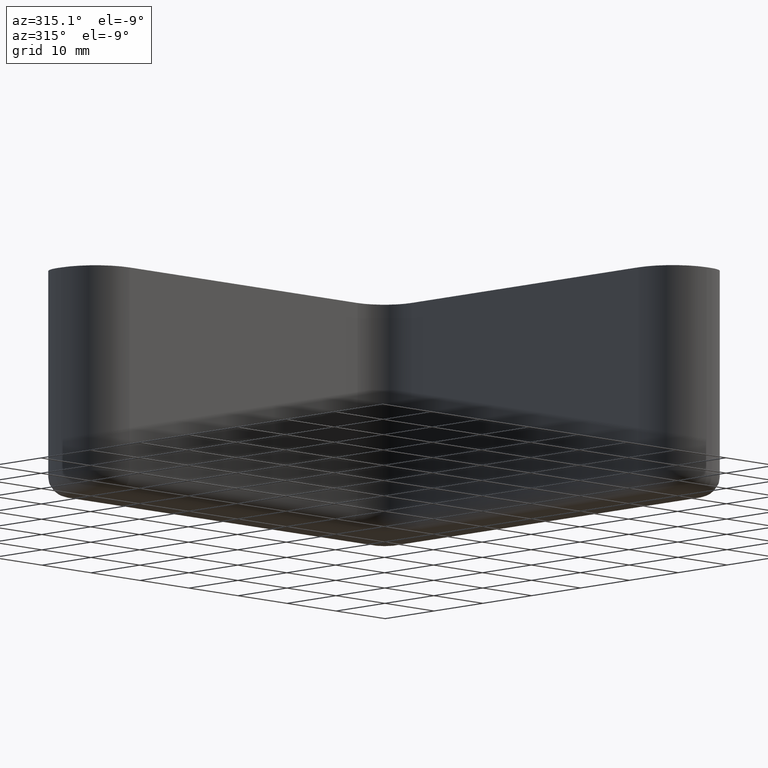
[diagram: clean part render]
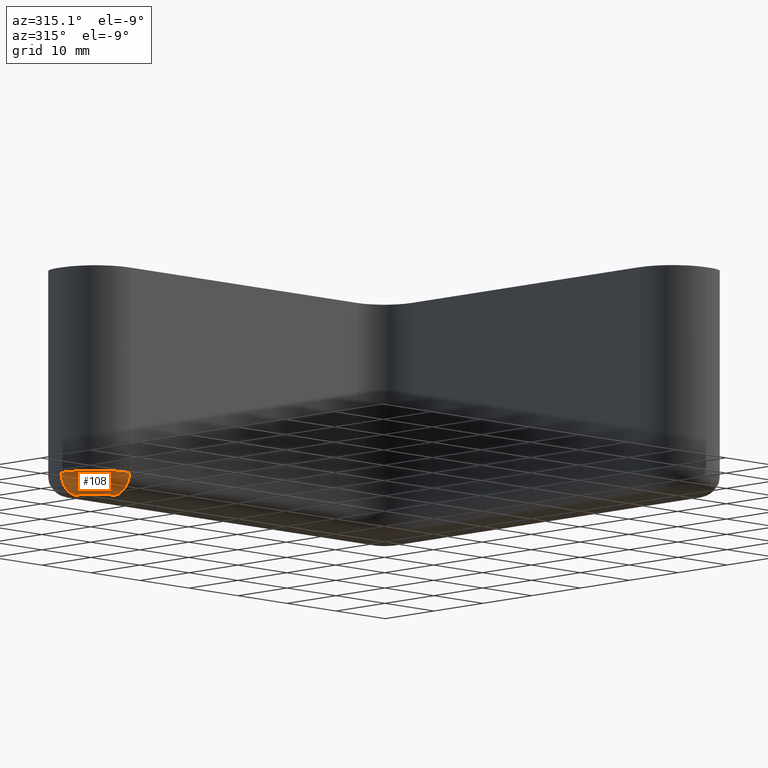
[diagram: same view with one face highlighted and labeled with its STEP entity id]
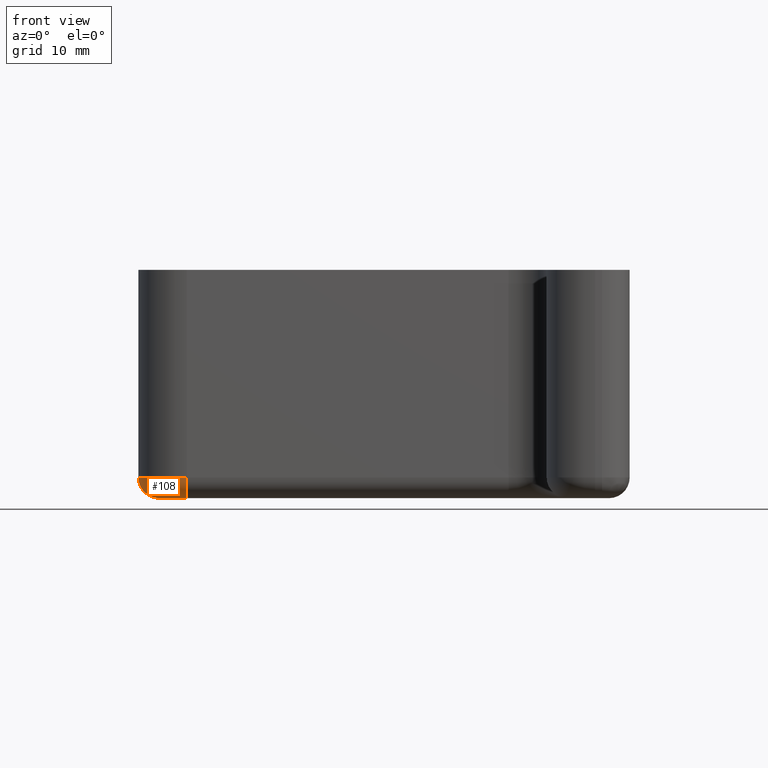
[diagram: same view with one face highlighted and labeled with its STEP entity id]
A machine part, auxiliary view. The second image highlights one B-rep face of the part: STEP entity #108.
A second angle (front view) of the same face is appended — the face is thin or edge-on in the first view.
In plain terms, the highlighted toroidal blend (fillet) surface has major radius 4 mm and minor (blend) radius 3 mm.
Its self-contained STEP definition (entity closure, byte-faithful):
#108 = ADVANCED_FACE( '', ( #182 ), #183, .T. );
#182 = FACE_OUTER_BOUND( '', #306, .T. );
#183 = TOROIDAL_SURFACE( '', #307, 4.00000000000000, 3.00000000000000 );
#306 = EDGE_LOOP( '', ( #576, #577, #578, #579 ) );
#307 = AXIS2_PLACEMENT_3D( '', #580, #581, #582 );
#576 = ORIENTED_EDGE( '', *, *, #710, .T. );
#577 = ORIENTED_EDGE( '', *, *, #622, .T. );
#578 = ORIENTED_EDGE( '', *, *, #620, .F. );
#579 = ORIENTED_EDGE( '', *, *, #690, .T. );
#580 = CARTESIAN_POINT( '', ( -61.0000000000000, -2.00000000000000, -30.0000000000000 ) );
#581 = DIRECTION( '', ( 3.58678896750442E-017, -8.65927457071936E-017, 1.00000000000000 ) );
#582 = DIRECTION( '', ( -1.00000000000000, 1.06733799631484E-048, 3.58678896750442E-017 ) );
#620 = EDGE_CURVE( '', #717, #719, #720, .T. );
#622 = EDGE_CURVE( '', #722, #719, #723, .T. );
#690 = EDGE_CURVE( '', #717, #840, #842, .T. );
#710 = EDGE_CURVE( '', #840, #722, #866, .T. );
#717 = VERTEX_POINT( '', #873 );
#719 = VERTEX_POINT( '', #876 );
#720 = CIRCLE( '', #877, 3.00000000000000 );
#722 = VERTEX_POINT( '', #880 );
#723 = CIRCLE( '', #881, 7.00000000000000 );
#840 = VERTEX_POINT( '', #1036 );
#842 = CIRCLE( '', #1039, 4.00000000000000 );
#866 = CIRCLE( '', #1073, 3.00000000000000 );
#873 = CARTESIAN_POINT( '', ( -65.0000000000000, -2.00000000000000, -33.0000000000000 ) );
#876 = CARTESIAN_POINT( '', ( -68.0000000000000, -2.00000000000000, -30.0000000000000 ) );
#877 = AXIS2_PLACEMENT_3D( '', #1084, #1085, #1086 );
#880 = CARTESIAN_POINT( '', ( -61.0000000000000, -9.00000000000000, -30.0000000000000 ) );
#881 = AXIS2_PLACEMENT_3D( '', #1088, #1089, #1090 );
#1036 = CARTESIAN_POINT( '', ( -61.0000000000000, -6.00000000000000, -33.0000000000000 ) );
#1039 = AXIS2_PLACEMENT_3D( '', #1214, #1215, #1216 );
#1073 = AXIS2_PLACEMENT_3D( '', #1254, #1255, #1256 );
#1084 = CARTESIAN_POINT( '', ( -65.0000000000000, -2.00000000000000, -30.0000000000000 ) );
#1085 = DIRECTION( '', ( 2.77555756156289E-016, 1.00000000000000, 8.65927457071935E-017 ) );
#1086 = DIRECTION( '', ( -3.58678896750442E-017, 8.65927457071935E-017, -1.00000000000000 ) );
#1088 = CARTESIAN_POINT( '', ( -61.0000000000000, -2.00000000000000, -30.0000000000000 ) );
#1089 = DIRECTION( '', ( -3.58678896750442E-017, 8.65927457071936E-017, -1.00000000000000 ) );
#1090 = DIRECTION( '', ( -0.707106781186547, -0.707106781186548, -3.58678896750443E-017 ) );
#1214 = CARTESIAN_POINT( '', ( -61.0000000000000, -2.00000000000000, -33.0000000000000 ) );
#1215 = DIRECTION( '', ( 3.58678896750442E-017, -8.65927457071936E-017, 1.00000000000000 ) );
#1216 = DIRECTION( '', ( -0.707106781186547, -0.707106781186548, -3.58678896750443E-017 ) );
#1254 = CARTESIAN_POINT( '', ( -61.0000000000000, -6.00000000000000, -30.0000000000000 ) );
#1255 = DIRECTION( '', ( -1.00000000000000, 0.000000000000000, 3.58678896750442E-017 ) );
#1256 = DIRECTION( '', ( -3.58678896750442E-017, 8.65927457071935E-017, -1.00000000000000 ) );